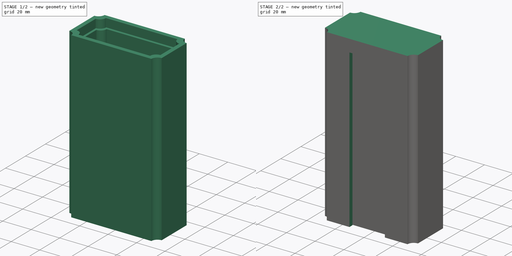
[diagram: build sequence overview — one tinted view per stage of 2, left to right]
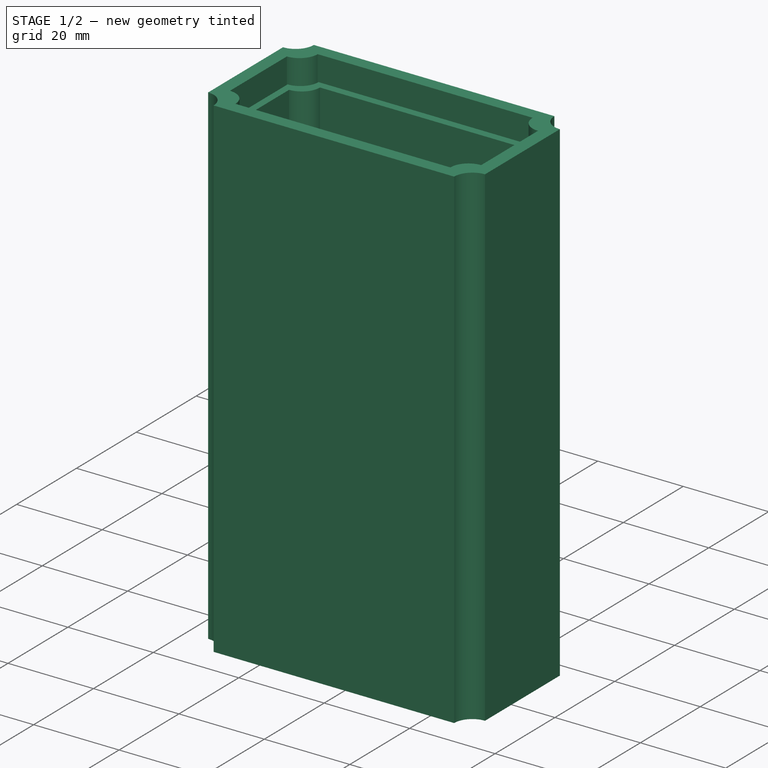
[diagram: stage 1 of 2 — iso view after this stage's code; geometry added in this stage tinted green]
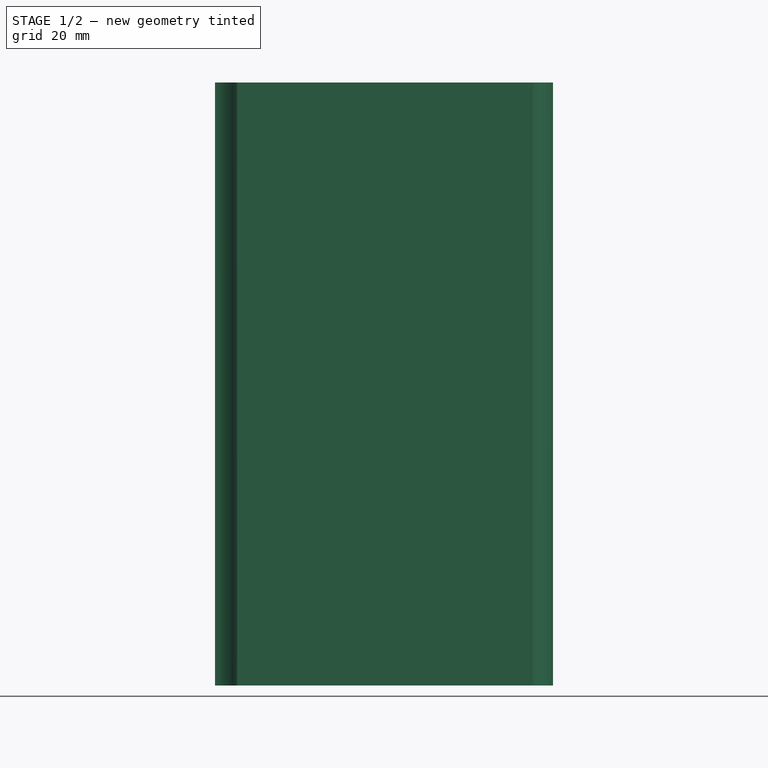
[diagram: stage 1 of 2 — front view after this stage's code; geometry added in this stage tinted green]
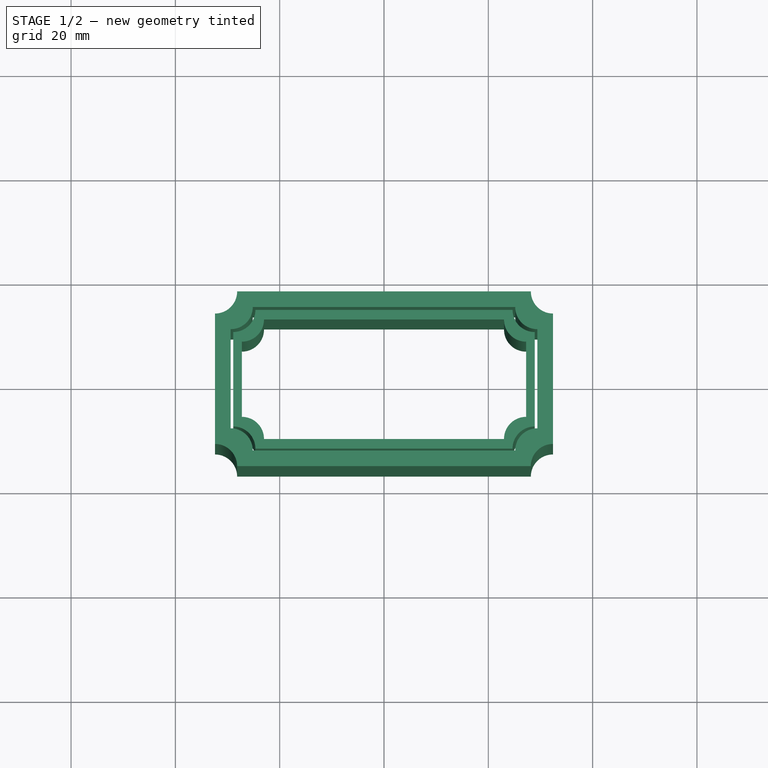
[diagram: stage 1 of 2 — top view after this stage's code; geometry added in this stage tinted green]
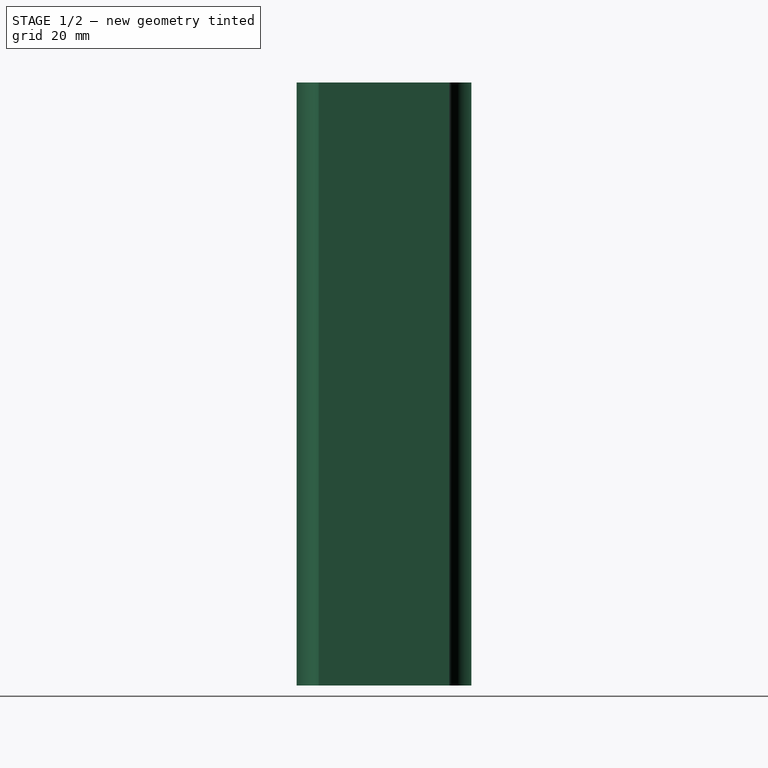
[diagram: stage 1 of 2 — right view after this stage's code; geometry added in this stage tinted green]
FCSTD DOCUMENT  (FreeCAD 1.1R39757 (Git))
Label: Кейс (не доделан)
License: All rights reserved
LicenseURL: https://en.wikipedia.org/wiki/All_rights_reserved
objects: Sketcher::SketchObject×3, PartDesign::Pad×3, App::Point×2, PartDesign::Body×2, PartDesign::SubShapeBinder×1, PartDesign::Pocket×1
note: 21 computed .brp shape members not serialized (recipe doc carries the construction recipe); baked Part::Feature solids carry a one-line shape summary decoded from their .brp

FEATURE [App::Point] Origin001
  Role = Origin
FEATURE [Sketcher::SketchObject] Sketch
  ArcFitTolerance = 1e-06
  AttachmentSupport = -> [XY_Plane]
  ExternalTypes = [0]
  FullyConstrained = true
  MakeInternals = false
  MapMode = 5
  sketch-geometry (16):
    g0: LineSegment StartX=-29.4 StartY=9.50736 StartZ=0 EndX=-29.4 EndY=-9.50736 EndZ=0
    g1: LineSegment StartX=-25.1574 StartY=13.75 StartZ=0 EndX=25.1574 EndY=13.75 EndZ=0
    g2: LineSegment StartX=29.4 StartY=9.50736 StartZ=0 EndX=29.4 EndY=-9.50736 EndZ=0
    g3: LineSegment StartX=-25.1574 StartY=-13.75 StartZ=0 EndX=25.1574 EndY=-13.75 EndZ=0
    g4: ArcOfCircle CenterX=-29.4 CenterY=-13.75 CenterZ=0 NormalX=0 NormalY=0 NormalZ=1 AngleXU=0 Radius=4.24264 StartAngle=0 EndAngle=1.5708
    g5: ArcOfCircle CenterX=29.4 CenterY=-13.75 CenterZ=0 NormalX=0 NormalY=0 NormalZ=1 AngleXU=0 Radius=4.24264 StartAngle=1.5708 EndAngle=3.14159
    g6: ArcOfCircle CenterX=29.4 CenterY=13.75 CenterZ=0 NormalX=0 NormalY=0 NormalZ=1 AngleXU=0 Radius=4.24264 StartAngle=3.14159 EndAngle=4.71239
    g7: ArcOfCircle CenterX=-29.4 CenterY=13.75 CenterZ=0 NormalX=0 NormalY=0 NormalZ=1 AngleXU=0 Radius=4.24264 StartAngle=4.71239 EndAngle=6.28319
    g8: LineSegment StartX=-28.1574 StartY=16.75 StartZ=0 EndX=28.1574 EndY=16.75 EndZ=0
    g9: LineSegment StartX=32.4 StartY=12.5074 StartZ=0 EndX=32.4 EndY=-12.5074 EndZ=0
    g10: LineSegment StartX=28.1574 StartY=-16.75 StartZ=0 EndX=-28.1574 EndY=-16.75 EndZ=0
    g11: LineSegment StartX=-32.4 StartY=-12.5074 StartZ=0 EndX=-32.4 EndY=12.5074 EndZ=0
    g12: ArcOfCircle CenterX=-32.4 CenterY=16.75 CenterZ=0 NormalX=0 NormalY=0 NormalZ=1 AngleXU=0 Radius=4.24264 StartAngle=4.71239 EndAngle=6.28319
    g13: ArcOfCircle CenterX=-32.4 CenterY=-16.75 CenterZ=0 NormalX=0 NormalY=0 NormalZ=1 AngleXU=0 Radius=4.24264 StartAngle=6.28319 EndAngle=7.85398
    g14: ArcOfCircle CenterX=32.4 CenterY=-16.75 CenterZ=0 NormalX=0 NormalY=0 NormalZ=1 AngleXU=0 Radius=4.24264 StartAngle=1.5708 EndAngle=3.14159
    g15: ArcOfCircle CenterX=32.4 CenterY=16.75 CenterZ=0 NormalX=0 NormalY=0 NormalZ=1 AngleXU=0 Radius=4.24264 StartAngle=3.14159 EndAngle=4.71239
  constraints (55):
    c: Horizontal(g1)
    c: Coincident(g4,g0)
    c: Coincident(g4,g3)
    c: Coincident(g5,g3)
    c: Coincident(g5,g2)
    c: Coincident(g6,g1)
    c: Coincident(g6,g2)
    c: Coincident(g7,g0)
    c: Coincident(g7,g1)
    c: Equal(g7,g4)
    c: Equal(g4,g5)
    c: Equal(g5,g6)
    c: Horizontal(g1,g7)
    c: Vertical(g0,g7)
    c: Vertical(g0,g4)
    c: Horizontal(g4,g3)
    c: Vertical(g0)
    c: Horizontal(g3)
    c: Horizontal(g5,g3)
    c: Vertical(g5,g2)
    c: Horizontal(g6,g1)
    c: Vertical(g2)
    c: Vertical(g6,g2)
    c: Distance(g3,g2) = 6
    c: Symmetric(g6,g4,g-1)
    c: DistanceX(g0,g2) = 58.8
    c: DistanceY(g3,g1) = 27.5
    c: Horizontal(g8)
    c: Vertical(g9)
    c: Horizontal(g10)
    c: Coincident(g12,g11)
    c: Coincident(g12,g8)
    c: Coincident(g13,g11)
    c: Coincident(g13,g10)
    c: Coincident(g14,g10)
    c: Coincident(g14,g9)
    c: Coincident(g15,g9)
    c: Coincident(g15,g8)
    c: Equal(g8,g10)
    c: Equal(g11,g9)
    c: Vertical(g11)
    c: DistanceX(g11,g0) = 3
    c: Perpendicular(g12,g11)
    c: Perpendicular(g12,g8)
    c: DistanceY(g0,g11) = 3
    c: DistanceX(g8,g1) = 3
    c: Equal(g15,g12)
    c: Equal(g13,g12)
    c: Equal(g13,g14)
    c: Vertical(g13,g12)
    c: Horizontal(g13,g14)
    c: Vertical(g14,g15)
    c: Horizontal(g15,g12)
    c: Distance(g3,g10) = 3
    c: DistanceX(g3,g10) = 3
FEATURE [PartDesign::Pad] Pad
  Direction = (0,0,1)
  Length = 115.6
  Length2 = 10
  Profile = -> Sketch
  ReferenceAxis = -> Sketch [N_Axis]
  Refine = true
  Suppressed = false
  Type = 0
FEATURE [PartDesign::Body] Body  label="Тело"
  AllowCompound = false
  Group = -> [Sketch,Pad,Sketch001,Binder,Pad001,Pocket]
  Origin = -> Origin
  Placement = pos=(127,0,0) rot=(0,0,1;0rad)
  Tip = -> Pocket
FEATURE [App::Point] Origin003  label="Origin"
  Role = Origin
FEATURE [Sketcher::SketchObject] Sketch002
  ArcFitTolerance = 1e-06
  AttachmentSupport = -> [XY_Plane001]
  ExternalTypes = [0]
  FullyConstrained = false
  MakeInternals = false
  MapMode = 5
  sketch-geometry (17):
    g0: LineSegment StartX=-27.25 StartY=7.20736 StartZ=0 EndX=-27.25 EndY=-7.20736 EndZ=0
    g1: LineSegment StartX=-28.9 StartY=9.05736 StartZ=0 EndX=-28.9 EndY=-9.05736 EndZ=0
    g2: LineSegment StartX=-23.0074 StartY=11.45 StartZ=0 EndX=23.0074 EndY=11.45 EndZ=0
    g3: LineSegment StartX=-24.6574 StartY=13.3 StartZ=0 EndX=24.6574 EndY=13.3 EndZ=0
    g4: LineSegment StartX=-24.6574 StartY=-13.3 StartZ=0 EndX=24.6574 EndY=-13.3 EndZ=0
    g5: LineSegment StartX=-23.0074 StartY=-11.45 StartZ=0 EndX=23.0074 EndY=-11.45 EndZ=0
    g6: LineSegment StartX=28.9 StartY=9.05736 StartZ=0 EndX=28.9 EndY=-9.05736 EndZ=0
    g7: LineSegment StartX=27.25 StartY=7.20736 StartZ=0 EndX=27.25 EndY=-7.20736 EndZ=0
    g8: ArcOfCircle CenterX=28.9 CenterY=13.3 CenterZ=0 NormalX=0 NormalY=0 NormalZ=1 AngleXU=0 Radius=4.24264 StartAngle=3.14159 EndAngle=4.71239
    g9: ArcOfCircle CenterX=27.25 CenterY=11.45 CenterZ=0 NormalX=0 NormalY=0 NormalZ=1 AngleXU=0 Radius=4.24264 StartAngle=3.14159 EndAngle=4.71239
    g10: ArcOfCircle CenterX=-28.9 CenterY=13.3 CenterZ=0 NormalX=0 NormalY=0 NormalZ=1 AngleXU=0 Radius=4.24264 StartAngle=4.71239 EndAngle=6.28319
    g11: ArcOfCircle CenterX=-27.25 CenterY=11.45 CenterZ=0 NormalX=0 NormalY=0 NormalZ=1 AngleXU=0 Radius=4.24264 StartAngle=4.71239 EndAngle=6.28319
    g12: ArcOfCircle CenterX=-28.9 CenterY=-13.3 CenterZ=0 NormalX=0 NormalY=0 NormalZ=1 AngleXU=0 Radius=4.24264 StartAngle=-9e-16 EndAngle=1.5708
    g13: ArcOfCircle CenterX=-27.25 CenterY=-11.45 CenterZ=0 NormalX=0 NormalY=0 NormalZ=1 AngleXU=0 Radius=4.24264 StartAngle=1e-16 EndAngle=1.5708
    g14: ArcOfCircle CenterX=28.9 CenterY=-13.3 CenterZ=0 NormalX=0 NormalY=0 NormalZ=1 AngleXU=0 Radius=4.24264 StartAngle=1.5708 EndAngle=3.14159
    g15: ArcOfCircle CenterX=27.25 CenterY=-11.45 CenterZ=0 NormalX=0 NormalY=0 NormalZ=1 AngleXU=0 Radius=4.24264 StartAngle=1.5708 EndAngle=3.14159
    g16: GeomPoint X=-37.3581 Y=-21.6103 Z=0
  constraints (54):
    c: Vertical(g1)
    c: Horizontal(g2)
    c: Coincident(g15,g7)
    c: Coincident(g9,g7)
    c: Coincident(g9,g2)
    c: Coincident(g6,g8)
    c: Coincident(g8,g3)
    c: Coincident(g6,g14)
    c: Coincident(g14,g4)
    c: Coincident(g5,g15)
    c: Coincident(g5,g13)
    c: Coincident(g1,g12)
    c: Coincident(g0,g13)
    c: Coincident(g4,g12)
    c: Coincident(g10,g1)
    c: Coincident(g3,g10)
    c: Coincident(g0,g11)
    c: Coincident(g11,g2)
    c: Horizontal(g3)
    c: Vertical(g6)
    c: Horizontal(g4)
    c: Horizontal(g5)
    c: Vertical(g7)
    c: Vertical(g0)
    c: Perpendicular(g11,g0)
    c: Perpendicular(g13,g0)
    c: Perpendicular(g13,g5)
    c: Perpendicular(g12,g4)
    c: Perpendicular(g12,g1)
    c: Perpendicular(g10,g1)
    c: Perpendicular(g10,g3)
    c: Perpendicular(g8,g3)
    c: Perpendicular(g8,g6)
    c: Perpendicular(g14,g6)
    c: Perpendicular(g14,g4)
    c: Perpendicular(g15,g5)
    c: Perpendicular(g15,g7)
    c: Perpendicular(g9,g7)
    c: Perpendicular(g9,g2)
    c: Perpendicular(g11,g2)
    c: Equal(g11,g9)
    c: Equal(g9,g15)
    c: Equal(g15,g13)
    c: Equal(g12,g10)
    c: Equal(g10,g8)
    c: Equal(g8,g14)
    c: Distance(g1,g3) = 6
    c: DistanceX(g1,g6) = 57.8
    c: DistanceY(g4,g3) = 26.6
    c: Equal(g8,g9)
    c: DistanceY(g5,g2) = 22.9
    c: Symmetric(g10,g14,g-1)
    c: Symmetric(g13,g9,g-1)
    c: DistanceX(g0,g7) = 54.5
FEATURE [PartDesign::Pad] Pad002
  Direction = (0,0,1)
  Length = 110
  Length2 = 10
  Profile = -> Sketch002
  ReferenceAxis = -> Sketch002 [N_Axis]
  Refine = true
  Suppressed = false
  Type = 0
FEATURE [PartDesign::Body] Body001  label="Тело001"
  AllowCompound = false
  Group = -> [Sketch002,Pad002]
  Origin = -> Origin002
  Tip = -> Pad002
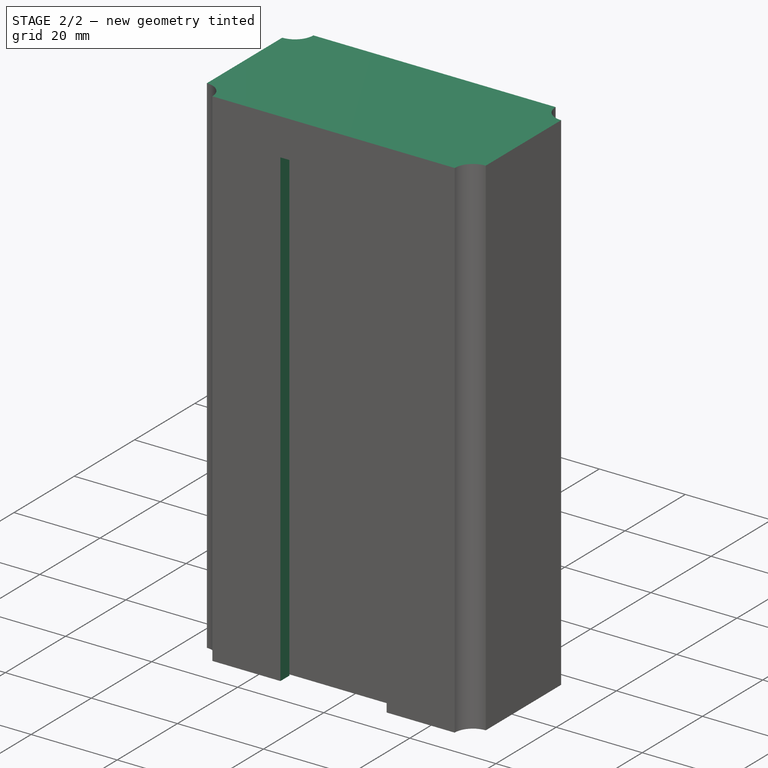
[diagram: stage 2 of 2 — iso view after this stage's code; geometry added in this stage tinted green]
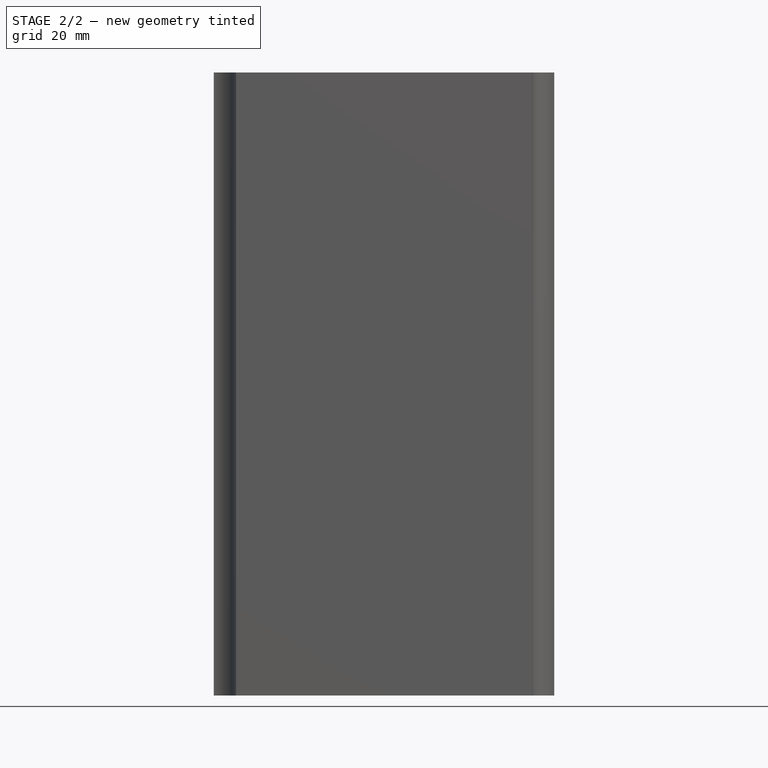
[diagram: stage 2 of 2 — front view after this stage's code; geometry added in this stage tinted green]
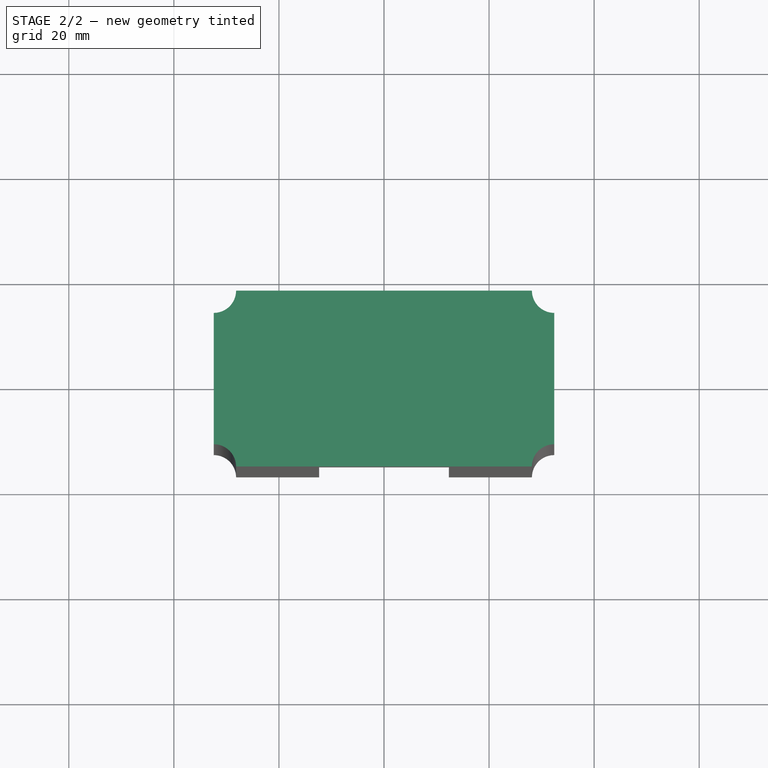
[diagram: stage 2 of 2 — top view after this stage's code; geometry added in this stage tinted green]
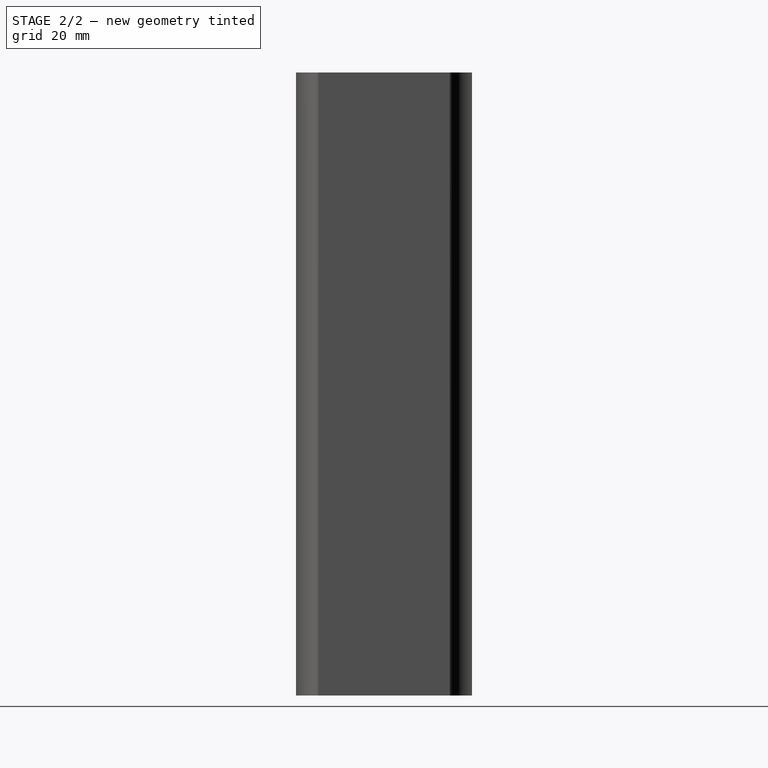
[diagram: stage 2 of 2 — right view after this stage's code; geometry added in this stage tinted green]
FEATURE [Sketcher::SketchObject] Sketch001
  ArcFitTolerance = 1e-06
  ExternalTypes = [0,0]
  FullyConstrained = true
  MakeInternals = false
  MapMode = 5
  Placement = pos=(0,-16.75,0) rot=(1,0,0;1.5708rad)
  sketch-geometry (4):
    g0: LineSegment StartX=-12.35 StartY=110 StartZ=0 EndX=-12.35 EndY=0 EndZ=0
    g1: LineSegment StartX=-12.35 StartY=0 StartZ=0 EndX=12.35 EndY=0 EndZ=0
    g2: LineSegment StartX=12.35 StartY=0 StartZ=0 EndX=12.35 EndY=110 EndZ=0
    g3: LineSegment StartX=12.35 StartY=110 StartZ=0 EndX=-12.35 EndY=110 EndZ=0
  constraints (11):
    c: Coincident(g0,g1)
    c: Coincident(g1,g2)
    c: Coincident(g2,g3)
    c: Coincident(g3,g0)
    c: Vertical(g0)
    c: Vertical(g2)
    c: Horizontal(g1)
    c: Symmetric(g0,g2,g-2)
    c: PointOnObject(g0,g-1)
    c: DistanceY(g0,g-3) = 8
    c: DistanceX(g-4,g0) = 20
FEATURE [PartDesign::SubShapeBinder] Binder
  BindCopyOnChange = 0
  BindMode = 0
  ClaimChildren = false
  Context = -> Body [Binder.]
  Fuse = false
  MakeFace = true
  OffsetFill = false
  OffsetIntersection = false
  OffsetJoinType = 0
  OffsetOpenResult = false
  PartialLoad = false
  Refine = true
  Relative = true
  Support = -> [Pad[Edge10,Edge13,Edge16,Edge7,Edge4,Edge24,Edge22,Edge19]]
  _Version = 2
FEATURE [PartDesign::Pad] Pad001
  BaseFeature = -> Pad
  Direction = (0,0,1)
  Length = 3
  Length2 = 10
  Profile = -> Binder
  Refine = true
  Suppressed = false
  Type = 0
FEATURE [PartDesign::Pocket] Pocket
  BaseFeature = -> Pad001
  Direction = (0,1,-2e-16)
  Length = 5
  Length2 = 5
  Profile = -> Sketch001
  ReferenceAxis = -> Sketch001 [N_Axis]
  Refine = true
  Suppressed = false
  Type = 2
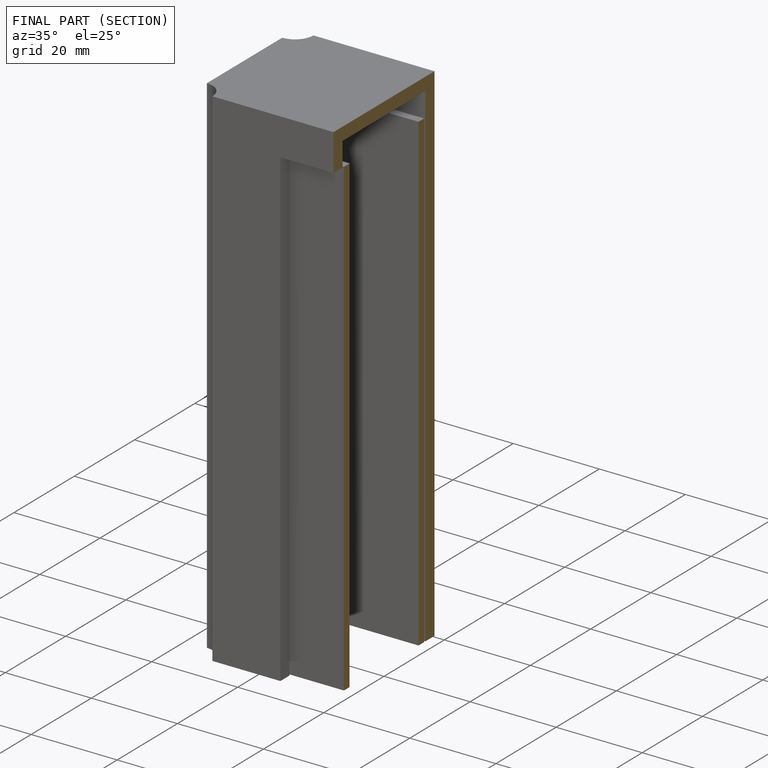
[diagram: finished part — half-section view (interior)]
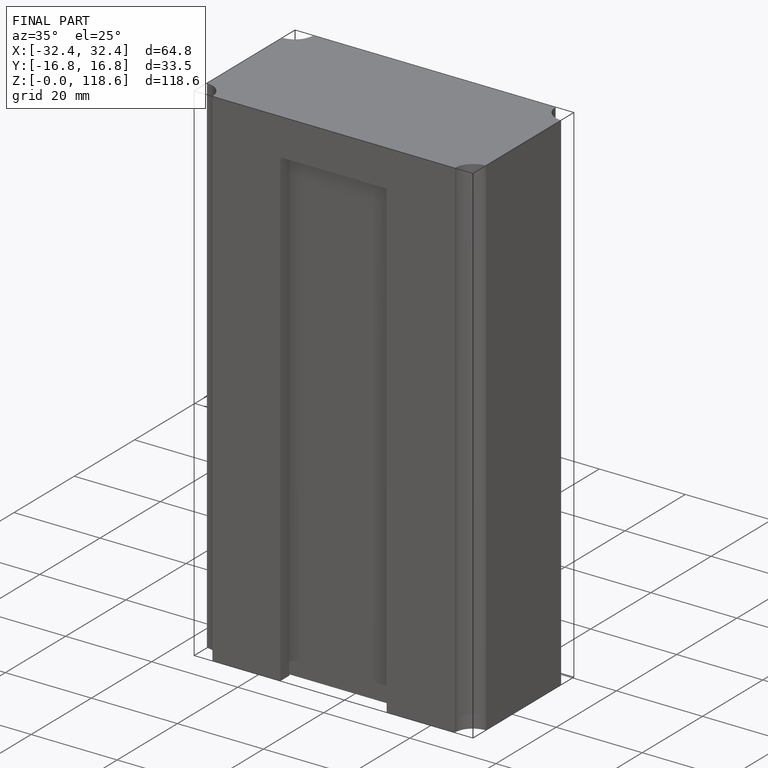
[diagram: finished part — iso view with bounding-box wireframe]
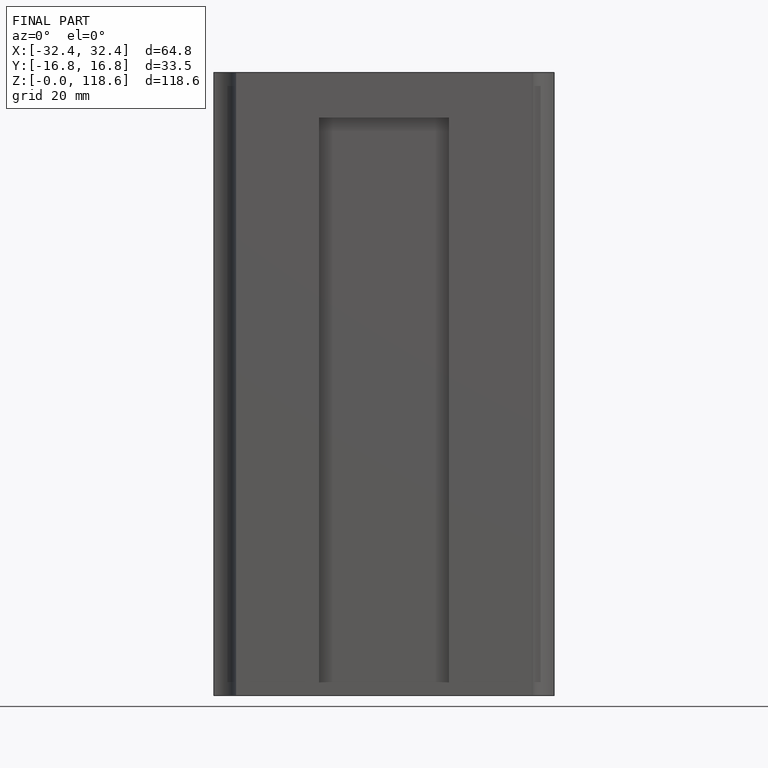
[diagram: finished part — front view with bounding-box wireframe]
